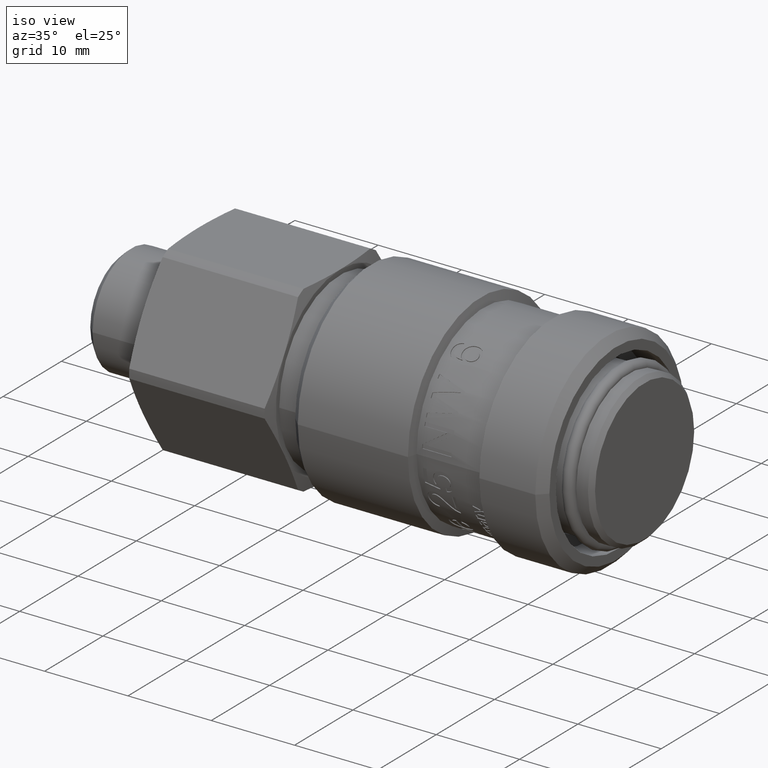
[diagram: clean part render]
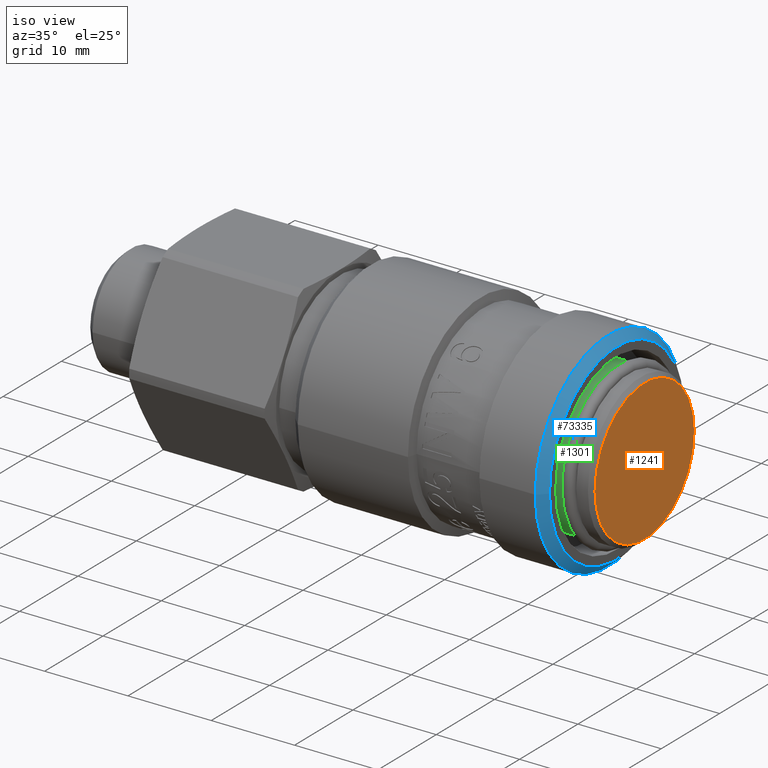
[diagram: same view with three faces highlighted in distinct colors, each labeled with its STEP entity id]
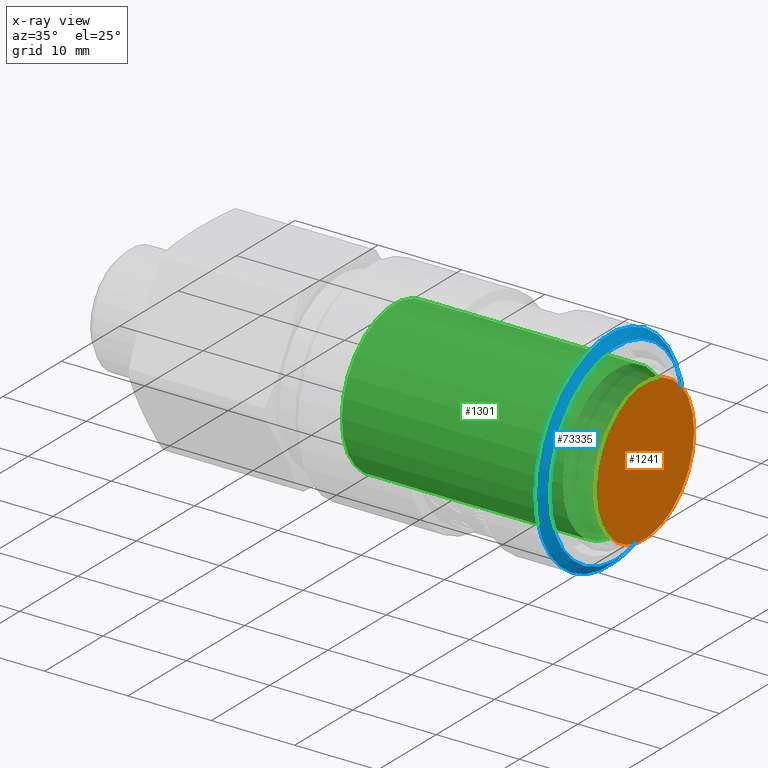
[diagram: x-ray of the same camera — body ghosted, the three highlighted faces saturated]
A machine part, iso view with three faces highlighted in distinct colors.
The next image is the same camera in x-ray (body ghosted, the three faces saturated) — at least one of them is partly hidden behind the body in this view.
Their STEP definitions:

[orange] entity #1241 — the highlighted planar face has unit normal (1, 0, 0).
#1225=CARTESIAN_POINT('',(37.0,7.500000000000004,0.0));
#1226=DIRECTION('',(1.0,0.0,0.0));
#1227=DIRECTION('',(0.0,0.0,-1.0));
#1228=AXIS2_PLACEMENT_3D('',#1225,#1226,#1227);
#1229=PLANE('',#1228);
#1230=CARTESIAN_POINT('',(37.0,8.500000000000004,-1.040950E-015));
#1231=VERTEX_POINT('',#1230);
#1232=CARTESIAN_POINT('',(37.0,4.531193E-015,0.0));
#1233=DIRECTION('',(-1.0,0.0,0.0));
#1234=DIRECTION('',(0.0,-1.0,0.0));
#1235=AXIS2_PLACEMENT_3D('',#1232,#1233,#1234);
#1236=CIRCLE('',#1235,8.500000000000000);
#1237=EDGE_CURVE('',#1231,#1231,#1236,.T.);
#1238=ORIENTED_EDGE('',*,*,#1237,.F.);
#1239=EDGE_LOOP('',(#1238));
#1240=FACE_OUTER_BOUND('',#1239,.T.);
#1241=ADVANCED_FACE('',(#1240),#1229,.T.);

[blue] entity #73335 — the highlighted conical surface has half-angle 45 deg.
#73308=CARTESIAN_POINT('',(33.180999999999997,4.461373E-015,0.0));
#73309=DIRECTION('',(-1.0,-1.357271E-016,0.0));
#73310=DIRECTION('',(0.0,1.0,0.0));
#73311=AXIS2_PLACEMENT_3D('',#73308,#73309,#73310);
#73312=CONICAL_SURFACE('',#73311,12.075000000000005,44.999999999999964);
#73313=CARTESIAN_POINT('',(32.680999999999997,-12.575000000000001,-1.539993E-015));
#73314=VERTEX_POINT('',#73313);
#73315=CARTESIAN_POINT('',(32.680999999999990,4.393509E-015,0.0));
#73316=DIRECTION('',(1.0,0.0,0.0));
#73317=DIRECTION('',(0.0,1.0,0.0));
#73318=AXIS2_PLACEMENT_3D('',#73315,#73316,#73317);
#73319=CIRCLE('',#73318,12.575000000000005);
#73320=EDGE_CURVE('',#73314,#73314,#73319,.T.);
#73321=ORIENTED_EDGE('',*,*,#73320,.T.);
#73322=EDGE_LOOP('',(#73321));
#73323=FACE_OUTER_BOUND('',#73322,.T.);
#73324=CARTESIAN_POINT('',(33.680999999999997,-11.574999999999999,1.417529E-015));
#73325=VERTEX_POINT('',#73324);
#73326=CARTESIAN_POINT('',(33.680999999999997,4.529237E-015,0.0));
#73327=DIRECTION('',(-1.0,0.0,0.0));
#73328=DIRECTION('',(0.0,1.0,0.0));
#73329=AXIS2_PLACEMENT_3D('',#73326,#73327,#73328);
#73330=CIRCLE('',#73329,11.575000000000003);
#73331=EDGE_CURVE('',#73325,#73325,#73330,.T.);
#73332=ORIENTED_EDGE('',*,*,#73331,.T.);
#73333=EDGE_LOOP('',(#73332));
#73334=FACE_BOUND('',#73333,.T.);
#73335=ADVANCED_FACE('',(#73323,#73334),#73312,.T.);

[green] entity #1301 — the highlighted cylindrical surface (bore or boss wall) has radius 9 mm, axis along (1, 0, 0).
#218=CARTESIAN_POINT('',(6.947199999999992,-9.0,-1.102182E-015));
#219=VERTEX_POINT('',#218);
#220=CARTESIAN_POINT('',(6.947199999999992,8.507866E-016,0.0));
#221=DIRECTION('',(1.0,0.0,0.0));
#222=DIRECTION('',(0.0,1.0,0.0));
#223=AXIS2_PLACEMENT_3D('',#220,#221,#222);
#224=CIRCLE('',#223,9.0);
#225=EDGE_CURVE('',#219,#219,#224,.T.);
#1282=CARTESIAN_POINT('',(18.125000000000000,2.219672E-015,0.0));
#1283=DIRECTION('',(1.0,1.224647E-016,0.0));
#1284=DIRECTION('',(0.0,1.0,0.0));
#1285=AXIS2_PLACEMENT_3D('',#1282,#1283,#1284);
#1286=CYLINDRICAL_SURFACE('',#1285,9.0);
#1287=ORIENTED_EDGE('',*,*,#225,.T.);
#1288=EDGE_LOOP('',(#1287));
#1289=FACE_OUTER_BOUND('',#1288,.T.);
#1290=CARTESIAN_POINT('',(33.500000000000000,9.000000000000002,0.0));
#1291=VERTEX_POINT('',#1290);
#1292=CARTESIAN_POINT('',(33.500000000000000,4.102567E-015,0.0));
#1293=DIRECTION('',(1.0,0.0,0.0));
#1294=DIRECTION('',(0.0,1.0,0.0));
#1295=AXIS2_PLACEMENT_3D('',#1292,#1293,#1294);
#1296=CIRCLE('',#1295,8.999999999999998);
#1297=EDGE_CURVE('',#1291,#1291,#1296,.T.);
#1298=ORIENTED_EDGE('',*,*,#1297,.F.);
#1299=EDGE_LOOP('',(#1298));
#1300=FACE_BOUND('',#1299,.T.);
#1301=ADVANCED_FACE('',(#1289,#1300),#1286,.T.);